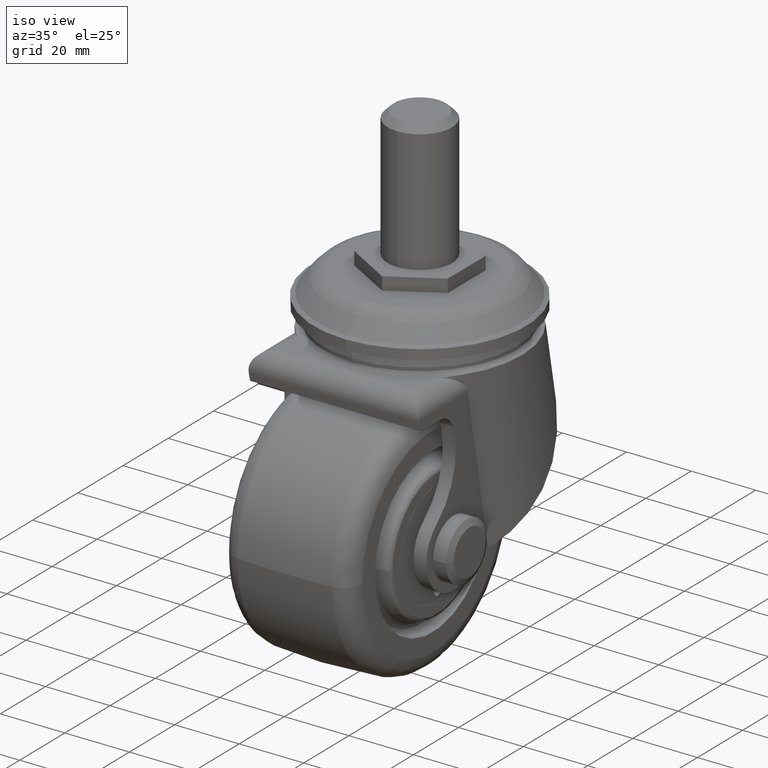
[diagram: clean part render]
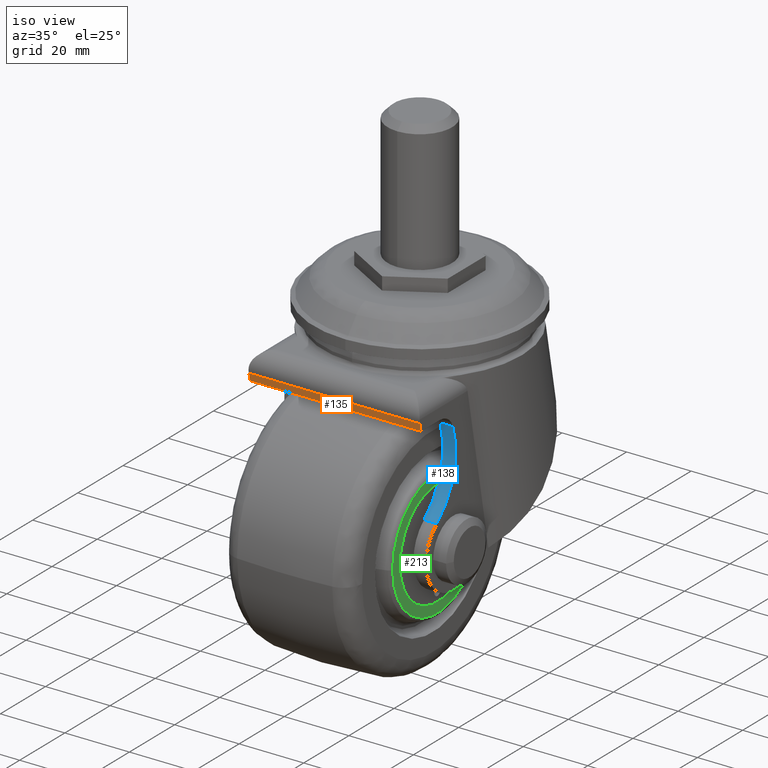
[diagram: same view with three faces highlighted in distinct colors, each labeled with its STEP entity id]
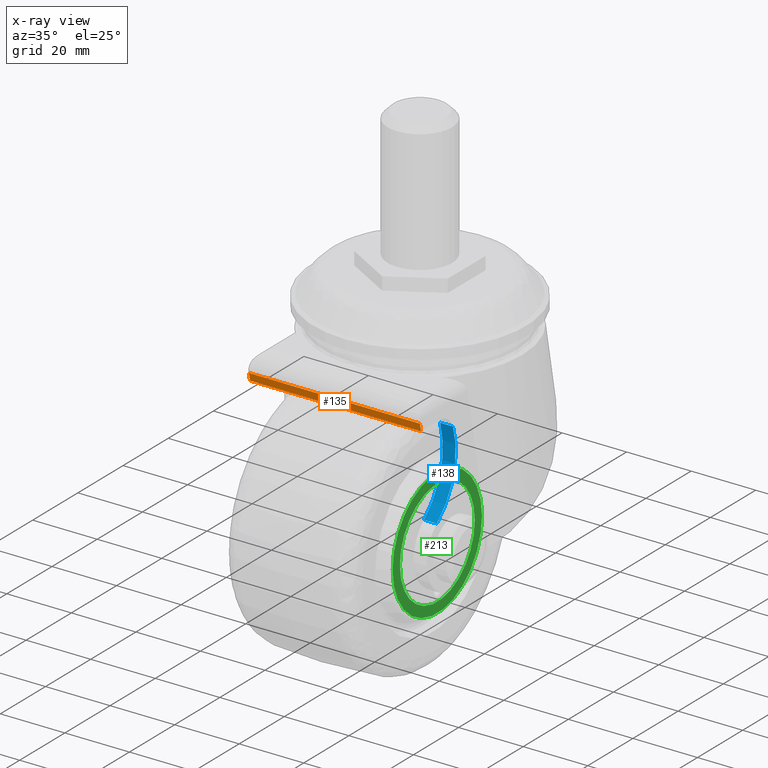
[diagram: x-ray of the same camera — body ghosted, the three highlighted faces saturated]
A machine part, iso view with three faces highlighted in distinct colors.
The next image is the same camera in x-ray (body ghosted, the three faces saturated) — at least one of them is partly hidden behind the body in this view.
Their STEP definitions:

[orange] entity #135 — the highlighted planar face has unit normal (0, -0.9741, -0.2263).
#135=ADVANCED_FACE('',(#518),#517,.T.);
#517=PLANE('',#2101);
#518=FACE_OUTER_BOUND('',#2102,.T.);
#2098=CARTESIAN_POINT('',(-3.18000000000E+01,-2.18946961403E+01,3.79253063678E+01));
#2099=DIRECTION('',(0.00000000000E+00,-2.26308389154E-01,9.74055703232E-01));
#2100=DIRECTION('',(0.00000000000E+00,-9.74055703232E-01,-2.26308389154E-01));
#2101=AXIS2_PLACEMENT_3D('',#2098,#2099,#2100);
#2102=EDGE_LOOP('',(#3752,#3753,#3754,#3755));
#3752=ORIENTED_EDGE('',*,*,#4407,.T.);
#3753=ORIENTED_EDGE('',*,*,#4472,.F.);
#3754=ORIENTED_EDGE('',*,*,#4397,.T.);
#3755=ORIENTED_EDGE('',*,*,#4474,.T.);
#4397=EDGE_CURVE('',#5030,#5023,#5031,.T.);
#4407=EDGE_CURVE('',#5099,#5092,#5100,.T.);
#4472=EDGE_CURVE('',#5030,#5092,#5545,.T.);
#4474=EDGE_CURVE('',#5023,#5099,#5557,.T.);
#5023=VERTEX_POINT('',#7584);
#5030=VERTEX_POINT('',#7589);
#5031=LINE('',#7590,#7591);
#5092=VERTEX_POINT('',#7631);
#5099=VERTEX_POINT('',#7635);
#5100=LINE('',#7636,#7637);
#5545=LINE('',#7960,#7961);
#5557=LINE('',#7966,#7967);
#7584=CARTESIAN_POINT('',(2.65000000000E+01,-2.21315419458E+01,3.78702785162E+01));
#7589=CARTESIAN_POINT('',(2.65000000000E+01,-2.45000000000E+01,3.73200000000E+01));
#7590=CARTESIAN_POINT('',(2.65000000000E+01,-2.45000000000E+01,3.73200000000E+01));
#7591=VECTOR('',#7592,2.43154272017E+00);
#7592=DIRECTION('',(0.00000000000E+00,9.74055703232E-01,2.26308389154E-01));
#7631=CARTESIAN_POINT('',(-2.65000000000E+01,-2.45000000000E+01,3.73200000000E+01));
#7635=CARTESIAN_POINT('',(-2.65000000000E+01,-2.21315419458E+01,3.78702785162E+01));
#7636=CARTESIAN_POINT('',(-2.65000000000E+01,-2.21315419458E+01,3.78702785162E+01));
#7637=VECTOR('',#7638,2.43154272017E+00);
#7638=DIRECTION('',(0.00000000000E+00,-9.74055703232E-01,-2.26308389154E-01));
#7960=CARTESIAN_POINT('',(2.65000000000E+01,-2.45000000000E+01,3.73200000000E+01));
#7961=VECTOR('',#7962,5.30000000000E+01);
#7962=DIRECTION('',(-1.00000000000E+00,0.00000000000E+00,0.00000000000E+00));
#7966=CARTESIAN_POINT('',(2.65000000000E+01,-2.21315419458E+01,3.78702785162E+01));
#7967=VECTOR('',#7968,5.30000000000E+01);
#7968=DIRECTION('',(-1.00000000000E+00,0.00000000000E+00,0.00000000000E+00));

[blue] entity #138 — the highlighted cylindrical surface (partial cylindrical patch) has radius 22 mm, axis along (1, 0, 0).
#138=ADVANCED_FACE('',(#548),#547,.F.);
#547=CYLINDRICAL_SURFACE('',#2116,2.20000000000E+01);
#548=FACE_OUTER_BOUND('',#2117,.T.);
#2113=CARTESIAN_POINT('',(3.70000000000E+01,-3.57610000000E+01,4.40000000000E+01));
#2114=DIRECTION('',(1.00000000000E+00,-0.00000000000E+00,-0.00000000000E+00));
#2115=DIRECTION('',(-0.00000000000E+00,-7.84286842700E-01,-6.20398378759E-01));
#2116=AXIS2_PLACEMENT_3D('',#2113,#2114,#2115);
#2117=EDGE_LOOP('',(#3766,#3767,#3768,#3769));
#3766=ORIENTED_EDGE('',*,*,#4400,.T.);
#3767=ORIENTED_EDGE('',*,*,#4476,.T.);
#3768=ORIENTED_EDGE('',*,*,#4418,.F.);
#3769=ORIENTED_EDGE('',*,*,#4480,.F.);
#4400=EDGE_CURVE('',#5010,#5044,#5051,.T.);
#4418=EDGE_CURVE('',#5164,#5171,#5172,.T.);
#4476=EDGE_CURVE('',#5044,#5171,#5569,.T.);
#4480=EDGE_CURVE('',#5010,#5164,#5595,.T.);
#5010=VERTEX_POINT('',#7576);
#5044=VERTEX_POINT('',#7597);
#5051=CIRCLE('',#7605,2.20000000000E+01);
#5164=VERTEX_POINT('',#7676);
#5171=VERTEX_POINT('',#7681);
#5172=CIRCLE('',#7685,2.20000000000E+01);
#5569=LINE('',#7979,#7980);
#5595=LINE('',#8005,#8006);
#7576=CARTESIAN_POINT('',(2.65000000000E+01,-5.30153105394E+01,3.03512356673E+01));
#7597=CARTESIAN_POINT('',(2.65000000000E+01,-2.85271250000E+01,2.32233050635E+01));
#7602=CARTESIAN_POINT('',(2.65000000000E+01,-3.57610000000E+01,4.40000000000E+01));
#7603=DIRECTION('',(1.00000000000E+00,0.00000000000E+00,-0.00000000000E+00));
#7604=DIRECTION('',(-0.00000000000E+00,3.28812500000E-01,-9.44395224386E-01));
#7605=AXIS2_PLACEMENT_3D('',#7602,#7603,#7604);
#7676=CARTESIAN_POINT('',(2.25000000000E+01,-5.30153105394E+01,3.03512356673E+01));
#7681=CARTESIAN_POINT('',(2.25000000000E+01,-2.85271250000E+01,2.32233050635E+01));
#7682=CARTESIAN_POINT('',(2.25000000000E+01,-3.57610000000E+01,4.40000000000E+01));
#7683=DIRECTION('',(1.00000000000E+00,0.00000000000E+00,-0.00000000000E+00));
#7684=DIRECTION('',(-0.00000000000E+00,3.28812500000E-01,-9.44395224386E-01));
#7685=AXIS2_PLACEMENT_3D('',#7682,#7683,#7684);
#7979=CARTESIAN_POINT('',(2.65000000000E+01,-2.85271250000E+01,2.32233050635E+01));
#7980=VECTOR('',#7981,4.00000000000E+00);
#7981=DIRECTION('',(-1.00000000000E+00,0.00000000000E+00,0.00000000000E+00));
#8005=CARTESIAN_POINT('',(2.65000000000E+01,-5.30153105394E+01,3.03512356673E+01));
#8006=VECTOR('',#8007,4.00000000000E+00);
#8007=DIRECTION('',(-1.00000000000E+00,0.00000000000E+00,0.00000000000E+00));

[green] entity #213 — the highlighted planar face has unit normal (1, 0, 0).
#213=ADVANCED_FACE('',(#1306,#1307),#1305,.T.);
#1305=PLANE('',#2805);
#1306=FACE_OUTER_BOUND('',#2806,.T.);
#1307=FACE_BOUND('',#2807,.T.);
#2802=CARTESIAN_POINT('',(2.15000000000E+01,-4.10914615216E+01,4.54713188775E+01));
#2803=DIRECTION('',(1.00000000000E+00,0.00000000000E+00,0.00000000000E+00));
#2804=DIRECTION('',(0.00000000000E+00,0.00000000000E+00,-1.00000000000E+00));
#2805=AXIS2_PLACEMENT_3D('',#2802,#2803,#2804);
#2806=EDGE_LOOP('',(#4092,#4093));
#2807=EDGE_LOOP('',(#4094,#4095));
#4092=ORIENTED_EDGE('',*,*,#4599,.T.);
#4093=ORIENTED_EDGE('',*,*,#4600,.T.);
#4094=ORIENTED_EDGE('',*,*,#4601,.F.);
#4095=ORIENTED_EDGE('',*,*,#4602,.F.);
#4599=EDGE_CURVE('',#6361,#6362,#6363,.T.);
#4600=EDGE_CURVE('',#6362,#6361,#6369,.T.);
#4601=EDGE_CURVE('',#6375,#6376,#6377,.T.);
#4602=EDGE_CURVE('',#6376,#6375,#6383,.T.);
#6361=VERTEX_POINT('',#8477);
#6362=VERTEX_POINT('',#8478);
#6363=CIRCLE('',#8482,1.97701386424E+01);
#6369=CIRCLE('',#8486,1.97701386424E+01);
#6375=VERTEX_POINT('',#8487);
#6376=VERTEX_POINT('',#8488);
#6377=CIRCLE('',#8492,1.65500002500E+01);
#6383=CIRCLE('',#8496,1.65500002500E+01);
#8477=CARTESIAN_POINT('',(2.15000000000E+01,0.00000000000E+00,-1.97701386424E+01));
#8478=CARTESIAN_POINT('',(2.15000000000E+01,1.18423789293E-15,1.97701386424E+01));
#8479=CARTESIAN_POINT('',(2.15000000000E+01,0.00000000000E+00,0.00000000000E+00));
#8480=DIRECTION('',(1.00000000000E+00,0.00000000000E+00,0.00000000000E+00));
#8481=DIRECTION('',(0.00000000000E+00,-1.22460635382E-16,-1.00000000000E+00));
#8482=AXIS2_PLACEMENT_3D('',#8479,#8480,#8481);
#8483=CARTESIAN_POINT('',(2.15000000000E+01,0.00000000000E+00,0.00000000000E+00));
#8484=DIRECTION('',(1.00000000000E+00,0.00000000000E+00,0.00000000000E+00));
#8485=DIRECTION('',(0.00000000000E+00,-1.22460635382E-16,-1.00000000000E+00));
#8486=AXIS2_PLACEMENT_3D('',#8483,#8484,#8485);
#8487=CARTESIAN_POINT('',(2.15000000000E+01,1.18423789293E-15,1.65500002500E+01));
#8488=CARTESIAN_POINT('',(2.15000000000E+01,0.00000000000E+00,-1.65500002500E+01));
#8489=CARTESIAN_POINT('',(2.15000000000E+01,0.00000000000E+00,0.00000000000E+00));
#8490=DIRECTION('',(1.00000000000E+00,0.00000000000E+00,0.00000000000E+00));
#8491=DIRECTION('',(0.00000000000E+00,-1.22460635382E-16,-1.00000000000E+00));
#8492=AXIS2_PLACEMENT_3D('',#8489,#8490,#8491);
#8493=CARTESIAN_POINT('',(2.15000000000E+01,0.00000000000E+00,0.00000000000E+00));
#8494=DIRECTION('',(1.00000000000E+00,0.00000000000E+00,0.00000000000E+00));
#8495=DIRECTION('',(0.00000000000E+00,-1.22460635382E-16,-1.00000000000E+00));
#8496=AXIS2_PLACEMENT_3D('',#8493,#8494,#8495);